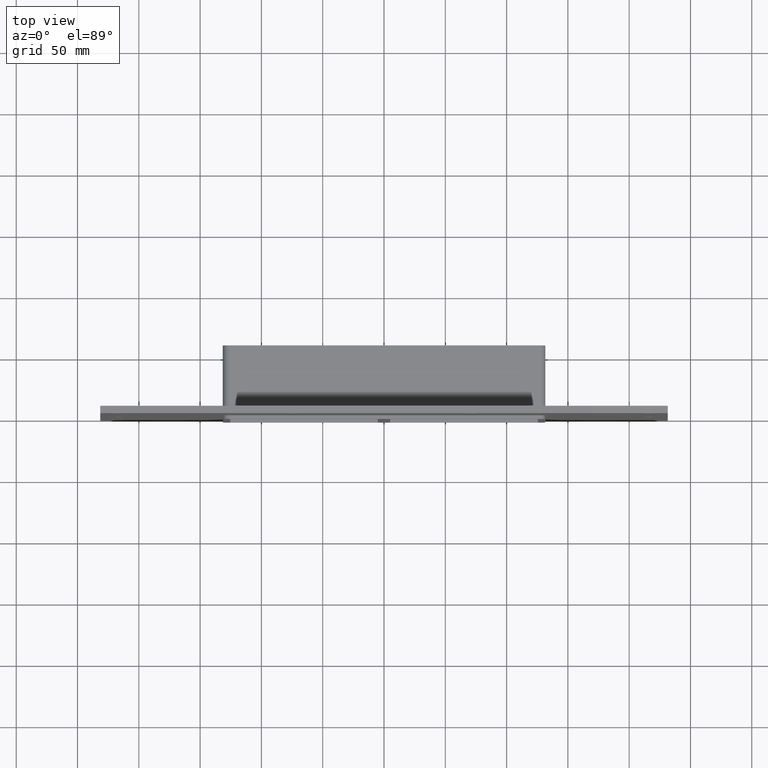
[diagram: clean part render]
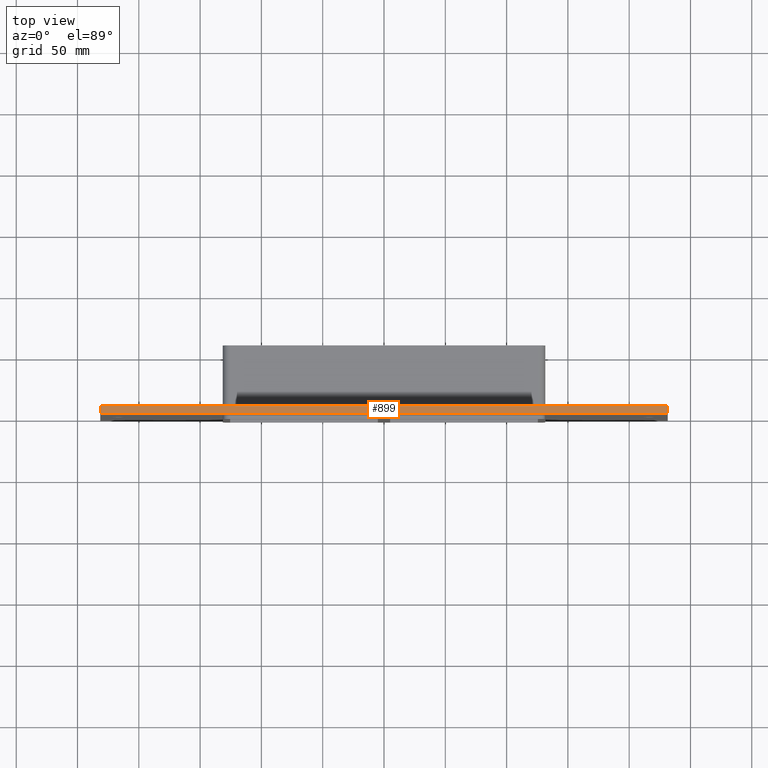
[diagram: same view with one face highlighted and labeled with its STEP entity id]
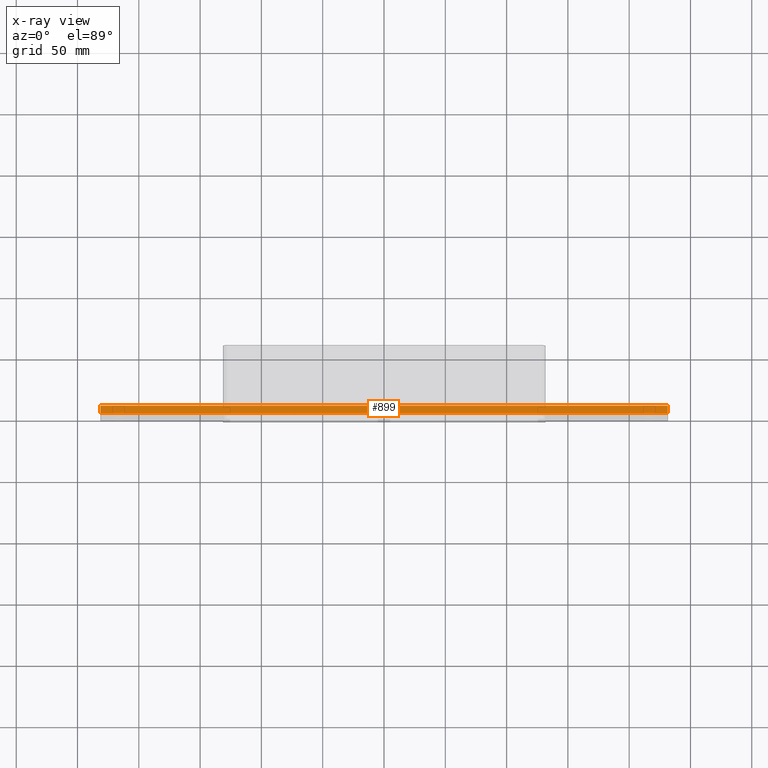
[diagram: x-ray of the same camera — body ghosted, the highlighted face saturated]
A machine part, top view. The second image highlights one B-rep face of the part: STEP entity #899.
The next image is the same camera in x-ray: the body ghosted, the highlighted face saturated — about 0% of this face is hidden behind the body in this view.
In plain terms, the highlighted planar face has unit normal (0, 0, 1).
Its self-contained STEP definition (entity closure, byte-faithful):
#557=CARTESIAN_POINT('',(-231.50000000000006,6.000000000000001,185.75000000000003));
#558=VERTEX_POINT('',#557);
#559=CARTESIAN_POINT('',(231.5,6.000000000000001,185.75000000000003));
#560=VERTEX_POINT('',#559);
#561=CARTESIAN_POINT('',(-231.50000000000006,6.000000000000001,185.75000000000003));
#562=DIRECTION('',(1.0,0.0,0.0));
#563=VECTOR('',#562,463.00000000000006);
#564=LINE('',#561,#563);
#565=EDGE_CURVE('',#558,#560,#564,.T.);
#697=CARTESIAN_POINT('',(-231.50000000000006,0.0,185.75000000000003));
#698=VERTEX_POINT('',#697);
#699=CARTESIAN_POINT('',(231.5,0.0,185.75000000000003));
#700=VERTEX_POINT('',#699);
#701=CARTESIAN_POINT('',(-231.50000000000006,0.0,185.75000000000003));
#702=DIRECTION('',(1.0,0.0,0.0));
#703=VECTOR('',#702,463.00000000000006);
#704=LINE('',#701,#703);
#705=EDGE_CURVE('',#698,#700,#704,.T.);
#838=CARTESIAN_POINT('',(-231.50000000000006,0.0,185.75000000000003));
#839=DIRECTION('',(0.0,1.0,0.0));
#840=VECTOR('',#839,6.000000000000001);
#841=LINE('',#838,#840);
#842=EDGE_CURVE('',#698,#558,#841,.T.);
#879=CARTESIAN_POINT('',(231.5,0.0,185.75000000000003));
#880=DIRECTION('',(0.0,1.0,0.0));
#881=VECTOR('',#880,6.000000000000001);
#882=LINE('',#879,#881);
#883=EDGE_CURVE('',#700,#560,#882,.T.);
#888=CARTESIAN_POINT('',(-231.50000000000006,0.0,185.75000000000003));
#889=DIRECTION('',(0.0,0.0,1.0));
#890=DIRECTION('',(1.0,0.0,0.0));
#891=AXIS2_PLACEMENT_3D('',#888,#889,#890);
#892=PLANE('',#891);
#893=ORIENTED_EDGE('',*,*,#705,.T.);
#894=ORIENTED_EDGE('',*,*,#883,.T.);
#895=ORIENTED_EDGE('',*,*,#565,.F.);
#896=ORIENTED_EDGE('',*,*,#842,.F.);
#897=EDGE_LOOP('',(#893,#894,#895,#896));
#898=FACE_OUTER_BOUND('',#897,.T.);
#899=ADVANCED_FACE('',(#898),#892,.T.);